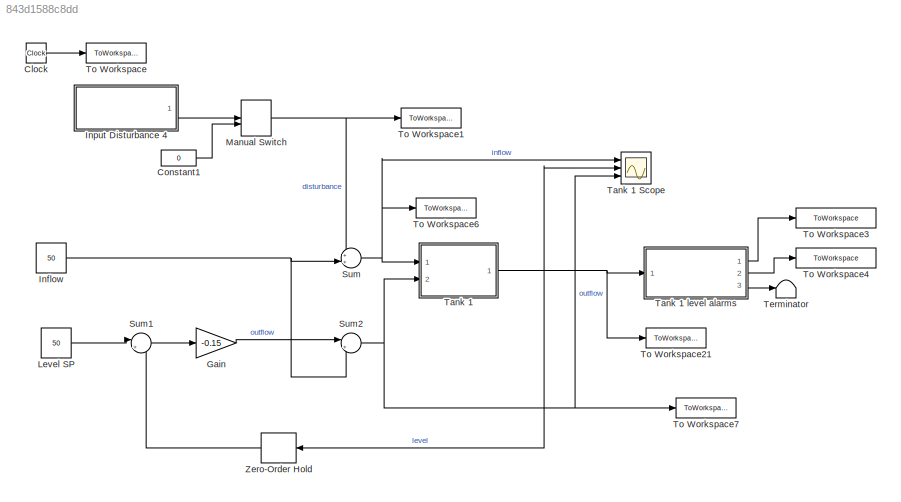
MODEL slx_843d1588c8dd
KIND model
CONFIG AbsTol = auto
CONFIG EnableMultiTasking = off
CONFIG FixedStep = auto
CONFIG MaxStep = auto
CONFIG MinStep = auto
CONFIG RelTol = 1e-3
CONFIG SampleTimeConstraint = Unconstrained
CONFIG SolverName = VariableStepAuto
CONFIG StartTime = 0.0
CONFIG StopTime = 1000
BLOCK [Clock] Clock
BLOCK [Constant] Constant1
  SampleTime = 1
  Value = 0
BLOCK [Gain] Gain
  Gain = -0.15
BLOCK [Constant] Inflow
  Value = 50
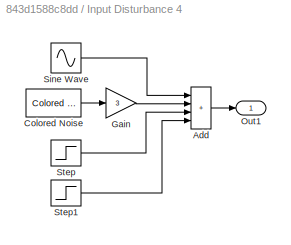
BLOCK [SubSystem] Input Disturbance 4
  Ports = [0, 1]
  RequestExecContextInheritance = off
BLOCK [Sum] Input Disturbance 4/Add
  IconShape = rectangular
  Inputs = ++++
  Ports = [4, 1]
BLOCK [Reference] Input Disturbance 4/Colored Noise  REF=dspsrcs4/Colored Noise
  Ports = [0, 1]
  SourceBlock = dspsrcs4/Colored Noise
  SourceProductBaseCode = DS
  SourceType = dsp.simulink.ColoredNoise
BLOCK [Gain] Input Disturbance 4/Gain
  Gain = 3
BLOCK [Outport] Input Disturbance 4/Out1
BLOCK [Sin] Input Disturbance 4/Sine Wave
  Amplitude = 0
  Frequency = 1/60
  Ports = [0, 1]
  SampleTime = 0
BLOCK [Step] Input Disturbance 4/Step
  After = 0
  SampleTime = 0
  Time = 100
BLOCK [Step] Input Disturbance 4/Step1
  After = 0
  SampleTime = 0
  Time = 200
BLOCK [Constant] Level SP
  Value = 50
BLOCK [ManualSwitch] Manual Switch
BLOCK [Sum] Sum
  Inputs = ++|
  Ports = [2, 1]
BLOCK [Sum] Sum1
  Inputs = |+-
  Ports = [2, 1]
BLOCK [Sum] Sum2
  Inputs = |++
  Ports = [2, 1]
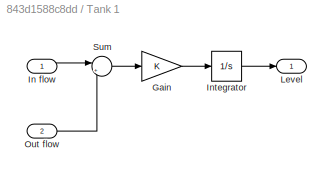
BLOCK [SubSystem] Tank 1
  Ports = [2, 1]
  RequestExecContextInheritance = off
BLOCK [Scope] Tank 1 Scope
  Floating = off
  NumInputPorts = 3
  Ports = [3]
  ScopeSpecificationString = Simulink.scopes.TimeScopeBlockCfg('CurrentConfiguration', extmgr.ConfigurationSet(extmgr.Configuration('Core','General UI',true,'FigureColor',[1 1 1]),extmgr.Configuration('Core','Source UI',true),extmgr.Configuration('Sources','WiredSimulink',true,'DataLoggingVariableName','ScopeData1'),extmgr.Configuration('Visuals','Time Domain',true,'SerializedDisplays',{struct('MinYLimReal','-3.7973','MaxYLim...<+1950ch>
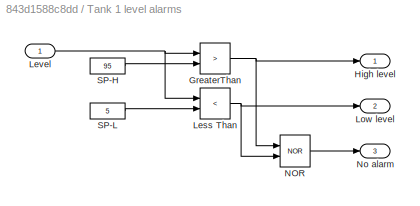
BLOCK [SubSystem] Tank 1 level alarms
  Ports = [1, 3]
  RequestExecContextInheritance = off
BLOCK [RelationalOperator] Tank 1 level alarms/GreaterThan
  InputSameDT = off
  Operator = >
  OutDataTypeStr = boolean
  Ports = [2, 1]
  RndMeth = Simplest
BLOCK [Outport] Tank 1 level alarms/High level
BLOCK [RelationalOperator] Tank 1 level alarms/Less Than
  InputSameDT = off
  Operator = <
  OutDataTypeStr = boolean
  Ports = [2, 1]
  RndMeth = Simplest
BLOCK [Inport] Tank 1 level alarms/Level
BLOCK [Outport] Tank 1 level alarms/Low level
  Port = 2
BLOCK [Logic] Tank 1 level alarms/NOR
  AllPortsSameDT = off
  IconShape = distinctive
  Operator = NOR
  OutDataTypeStr = boolean
  Ports = [2, 1]
BLOCK [Outport] Tank 1 level alarms/No alarm
  Port = 3
BLOCK [Constant] Tank 1 level alarms/SP-H
  Value = 95
BLOCK [Constant] Tank 1 level alarms/SP-L
  Value = 5
BLOCK [Gain] Tank 1/Gain
  Gain = K
BLOCK [Inport] Tank 1/In flow
BLOCK [Integrator] Tank 1/Integrator
  InitialCondition = y0
  Ports = [1, 1]
BLOCK [Outport] Tank 1/Level
  InitialOutput = 0
BLOCK [Inport] Tank 1/Out flow
  Port = 2
BLOCK [Sum] Tank 1/Sum
  Inputs = |+-
  Ports = [2, 1]
BLOCK [Terminator] Terminator
BLOCK [ToWorkspace] To Workspace
  FixptAsFi = on
  MaxDataPoints = inf
  Ports = [1]
  SampleTime = 1
  VariableName = t
BLOCK [ToWorkspace] To Workspace1
  FixptAsFi = on
  MaxDataPoints = inf
  Ports = [1]
  SampleTime = 1
  Save2DSignal = 2-D array (concatenate along first dimension)
  VariableName = p1
BLOCK [ToWorkspace] To Workspace21
  FixptAsFi = on
  MaxDataPoints = inf
  Ports = [1]
  SampleTime = 1
  VariableName = L1
BLOCK [ToWorkspace] To Workspace3
  FixptAsFi = on
  MaxDataPoints = inf
  Ports = [1]
  SampleTime = 1
  VariableName = LA1_H
BLOCK [ToWorkspace] To Workspace4
  FixptAsFi = on
  MaxDataPoints = inf
  Ports = [1]
  SampleTime = 1
  VariableName = LA1_L
BLOCK [ToWorkspace] To Workspace6
  FixptAsFi = on
  MaxDataPoints = inf
  Ports = [1]
  SampleTime = 1
  VariableName = F0
BLOCK [ToWorkspace] To Workspace7
  FixptAsFi = on
  MaxDataPoints = inf
  Ports = [1]
  SampleTime = 1
  VariableName = F1
BLOCK [ZeroOrderHold] Zero-Order Hold
  SampleTime = 100
LINE Clock:1 -> To Workspace:1
LINE Constant1:1 -> Manual Switch:2
LINE Gain:1 -> Sum2:1
NET Inflow:1 -> Sum2:2, Sum:2
LINE Input Disturbance 4/Add:1 -> Input Disturbance 4/Out1:1
LINE Input Disturbance 4/Colored Noise:1 -> Input Disturbance 4/Gain:1
LINE Input Disturbance 4/Gain:1 -> Input Disturbance 4/Add:2
LINE Input Disturbance 4/Sine Wave:1 -> Input Disturbance 4/Add:1
LINE Input Disturbance 4/Step1:1 -> Input Disturbance 4/Add:4
LINE Input Disturbance 4/Step:1 -> Input Disturbance 4/Add:3
LINE Input Disturbance 4:1 -> Manual Switch:1
LINE Level SP:1 -> Sum1:1
NET Manual Switch:1 -> Sum:1, To Workspace1:1
LINE Sum1:1 -> Gain:1
NET Sum2:1 -> Tank 1 Scope:3, Tank 1:2, To Workspace7:1
NET Sum:1 -> Tank 1 Scope:1, Tank 1:1, To Workspace6:1
NET Tank 1 level alarms/GreaterThan:1 -> Tank 1 level alarms/High level:1, Tank 1 level alarms/NOR:1
NET Tank 1 level alarms/Less Than:1 -> Tank 1 level alarms/Low level:1, Tank 1 level alarms/NOR:2
NET Tank 1 level alarms/Level:1 -> Tank 1 level alarms/GreaterThan:1, Tank 1 level alarms/Less Than:1
LINE Tank 1 level alarms/NOR:1 -> Tank 1 level alarms/No alarm:1
LINE Tank 1 level alarms/SP-H:1 -> Tank 1 level alarms/GreaterThan:2
LINE Tank 1 level alarms/SP-L:1 -> Tank 1 level alarms/Less Than:2
LINE Tank 1 level alarms:1 -> To Workspace3:1
LINE Tank 1 level alarms:2 -> To Workspace4:1
LINE Tank 1 level alarms:3 -> Terminator:1
LINE Tank 1/Gain:1 -> Tank 1/Integrator:1
LINE Tank 1/In flow:1 -> Tank 1/Sum:1
LINE Tank 1/Integrator:1 -> Tank 1/Level:1
LINE Tank 1/Out flow:1 -> Tank 1/Sum:2
LINE Tank 1/Sum:1 -> Tank 1/Gain:1
NET Tank 1:1 -> Tank 1 Scope:2, Tank 1 level alarms:1, To Workspace21:1, Zero-Order Hold:1
LINE Zero-Order Hold:1 -> Sum1:2
note: NET lines group one-source signal fan-out (src -> all destinations, sorted); 1:1 wires keep LINE
